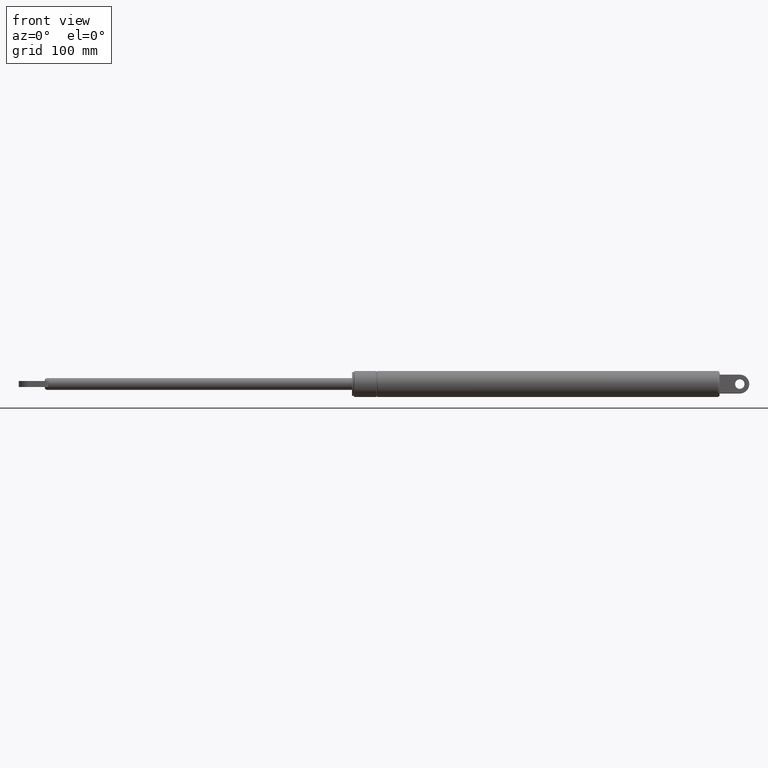
[diagram: clean part render]
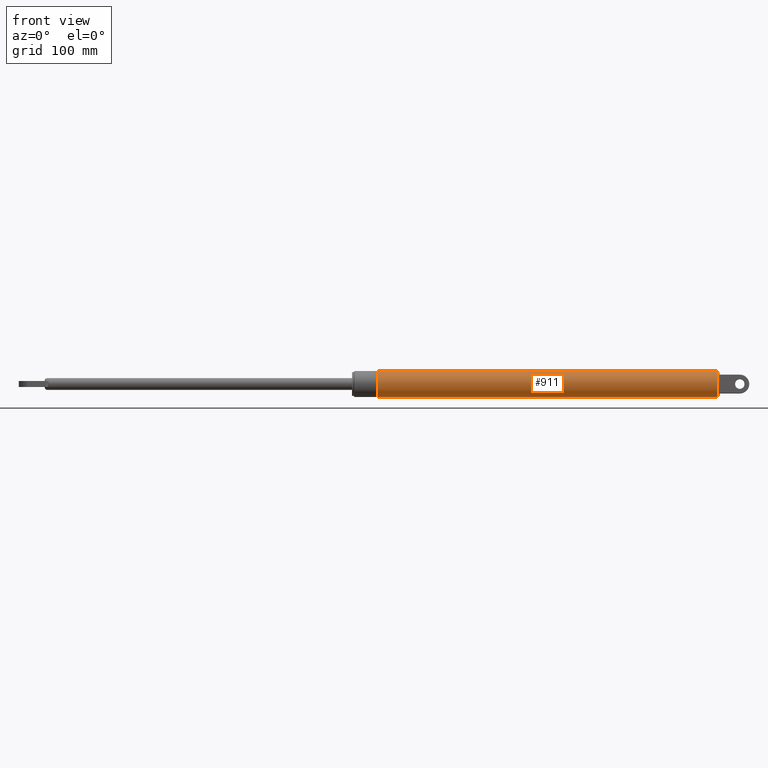
[diagram: same view with one face highlighted and labeled with its STEP entity id]
A machine part, front view. The second image highlights one B-rep face of the part: STEP entity #911.
In plain terms, the highlighted cylindrical surface (bore or boss wall) has radius 11 mm, axis along (-1, 0, 0).
Its self-contained STEP definition (entity closure, byte-faithful):
#171=CYLINDRICAL_SURFACE('',#1008,11.);
#197=FACE_BOUND('',#311,.T.);
#238=FACE_OUTER_BOUND('',#310,.T.);
#310=EDGE_LOOP('',(#730));
#311=EDGE_LOOP('',(#731));
#387=CIRCLE('',#997,11.);
#393=CIRCLE('',#1006,11.);
#457=VERTEX_POINT('',#1514);
#463=VERTEX_POINT('',#1529);
#557=EDGE_CURVE('',#457,#457,#387,.T.);
#563=EDGE_CURVE('',#463,#463,#393,.T.);
#730=ORIENTED_EDGE('',*,*,#557,.F.);
#731=ORIENTED_EDGE('',*,*,#563,.F.);
#911=ADVANCED_FACE('',(#238,#197),#171,.T.);
#997=AXIS2_PLACEMENT_3D('',#1515,#1194,#1195);
#1006=AXIS2_PLACEMENT_3D('',#1530,#1212,#1213);
#1008=AXIS2_PLACEMENT_3D('',#1532,#1216,#1217);
#1194=DIRECTION('center_axis',(-1.,0.,3.07998957714736E-16));
#1195=DIRECTION('ref_axis',(3.07998957714736E-16,0.,1.));
#1212=DIRECTION('center_axis',(1.,0.,-3.07998957714736E-16));
#1213=DIRECTION('ref_axis',(-3.02788097625043E-16,1.22464679914735E-16,
-1.));
#1216=DIRECTION('center_axis',(-1.,0.,3.07998957714736E-16));
#1217=DIRECTION('ref_axis',(3.07998957714736E-16,0.,1.));
#1514=CARTESIAN_POINT('',(21.5,0.,11.));
#1515=CARTESIAN_POINT('Origin',(21.5,0.,-6.62197759086683E-15));
#1529=CARTESIAN_POINT('',(307.998387092578,-2.69422295812418E-15,10.9999999999999));
#1530=CARTESIAN_POINT('Origin',(307.998387092578,0.,-9.4863182202334E-14));
#1532=CARTESIAN_POINT('Origin',(165.749193546289,0.,-5.10505788543152E-14));